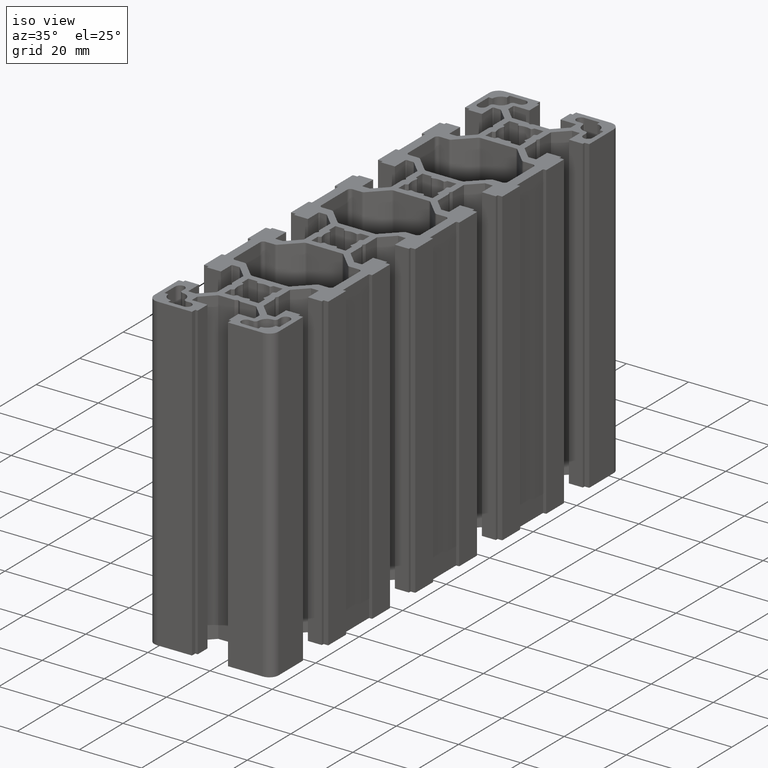
[diagram: clean part render]
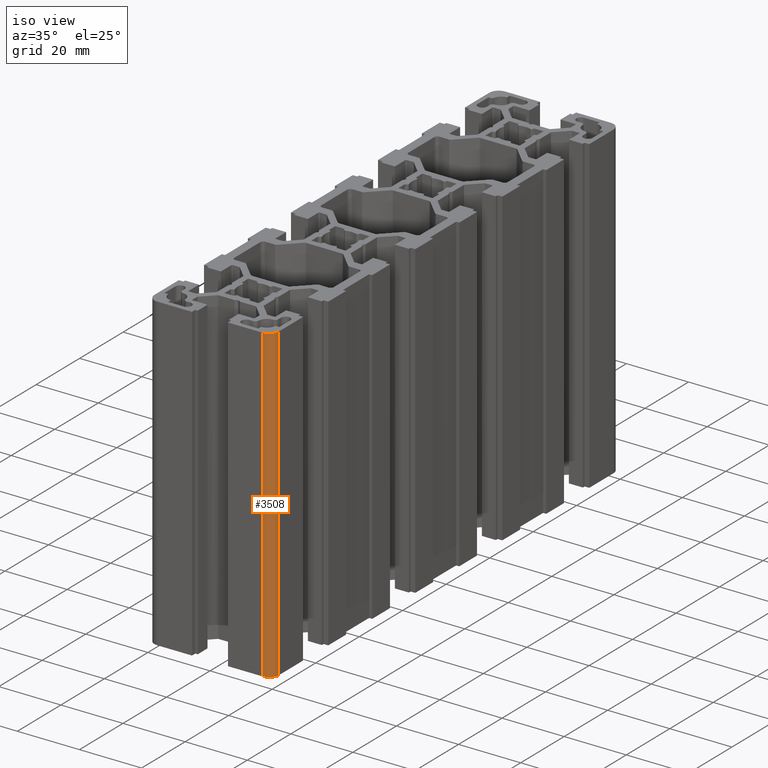
[diagram: same view with one face highlighted and labeled with its STEP entity id]
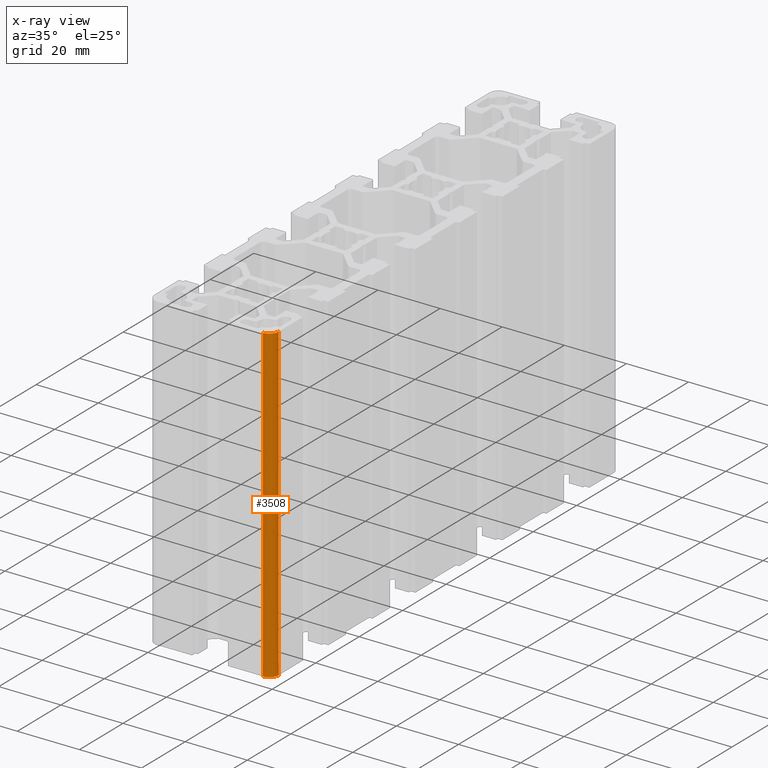
[diagram: x-ray of the same camera — body ghosted, the highlighted face saturated]
A machine part, iso view. The second image highlights one B-rep face of the part: STEP entity #3508.
The next image is the same camera in x-ray: the body ghosted, the highlighted face saturated — about 0% of this face is hidden behind the body in this view.
In plain terms, the highlighted cylindrical surface (edge-blend (fillet) strip) has radius 3 mm, axis along (0, 0, -1).
Its self-contained STEP definition (entity closure, byte-faithful):
#623 = VERTEX_POINT ( 'NONE', #7254 ) ;
#625 = EDGE_CURVE ( 'NONE', #623, #626, #7253, .T. ) ;
#626 = VERTEX_POINT ( 'NONE', #7248 ) ;
#2317 = VERTEX_POINT ( 'NONE', #10246 ) ;
#2319 = EDGE_CURVE ( 'NONE', #2320, #2317, #10245, .T. ) ;
#2320 = VERTEX_POINT ( 'NONE', #10240 ) ;
#3486 = ORIENTED_EDGE ( 'NONE', *, *, #2319, .T. ) ;
#3487 = ORIENTED_EDGE ( 'NONE', *, *, #3488, .F. ) ;
#3488 = EDGE_CURVE ( 'NONE', #626, #2317, #12073, .T. ) ;
#3489 = ORIENTED_EDGE ( 'NONE', *, *, #625, .F. ) ;
#3490 = ORIENTED_EDGE ( 'NONE', *, *, #3505, .T. ) ;
#3505 = EDGE_CURVE ( 'NONE', #623, #2320, #12113, .T. ) ;
#3508 = ADVANCED_FACE ( 'NONE', ( #12109 ), #12107, .T. ) ;
#3509 = EDGE_LOOP ( 'NONE', ( #3486, #3487, #3489, #3490 ) ) ;
#7248 = CARTESIAN_POINT ( 'NONE',  ( 20.00000000000000400, -77.00000133514396300, 100.0000000000000000 ) ) ;
#7249 = DIRECTION ( 'NONE',  ( 1.000000000000000000, 0.0000000000000000000, 0.0000000000000000000 ) ) ;
#7250 = DIRECTION ( 'NONE',  ( 0.0000000000000000000, 0.0000000000000000000, 1.000000000000000000 ) ) ;
#7251 = CARTESIAN_POINT ( 'NONE',  ( 17.00000000000000000, -77.00000133514396300, 100.0000000000000000 ) ) ;
#7252 = AXIS2_PLACEMENT_3D ( 'NONE', #7251, #7250, #7249 ) ;
#7253 = CIRCLE ( 'NONE', #7252, 3.000000000000002700 ) ;
#7254 = CARTESIAN_POINT ( 'NONE',  ( 17.00000000000000000, -80.00000133514396300, 100.0000000000000000 ) ) ;
#10240 = CARTESIAN_POINT ( 'NONE',  ( 17.00000000000000000, -80.00000133514396300, 0.0000000000000000000 ) ) ;
#10241 = DIRECTION ( 'NONE',  ( 1.000000000000000000, 0.0000000000000000000, 0.0000000000000000000 ) ) ;
#10242 = DIRECTION ( 'NONE',  ( 0.0000000000000000000, 0.0000000000000000000, 1.000000000000000000 ) ) ;
#10243 = CARTESIAN_POINT ( 'NONE',  ( 17.00000000000000000, -77.00000133514396300, 0.0000000000000000000 ) ) ;
#10244 = AXIS2_PLACEMENT_3D ( 'NONE', #10243, #10242, #10241 ) ;
#10245 = CIRCLE ( 'NONE', #10244, 3.000000000000002700 ) ;
#10246 = CARTESIAN_POINT ( 'NONE',  ( 20.00000000000000400, -77.00000133514396300, 0.0000000000000000000 ) ) ;
#12070 = DIRECTION ( 'NONE',  ( 0.0000000000000000000, 0.0000000000000000000, -1.000000000000000000 ) ) ;
#12071 = VECTOR ( 'NONE', #12070, 1000.000000000000000 ) ;
#12072 = CARTESIAN_POINT ( 'NONE',  ( 20.00000000000000400, -77.00000133514396300, 100.0000000000000000 ) ) ;
#12073 = LINE ( 'NONE', #12072, #12071 ) ;
#12103 = DIRECTION ( 'NONE',  ( -1.000000000000000000, 0.0000000000000000000, 0.0000000000000000000 ) ) ;
#12104 = DIRECTION ( 'NONE',  ( 0.0000000000000000000, 0.0000000000000000000, -1.000000000000000000 ) ) ;
#12105 = CARTESIAN_POINT ( 'NONE',  ( 17.00000000000000000, -77.00000133514396300, 100.0000000000000000 ) ) ;
#12106 = AXIS2_PLACEMENT_3D ( 'NONE', #12105, #12104, #12103 ) ;
#12107 = CYLINDRICAL_SURFACE ( 'NONE', #12106, 3.000000000000000900 ) ;
#12109 = FACE_OUTER_BOUND ( 'NONE', #3509, .T. ) ;
#12110 = DIRECTION ( 'NONE',  ( 0.0000000000000000000, 0.0000000000000000000, -1.000000000000000000 ) ) ;
#12111 = VECTOR ( 'NONE', #12110, 1000.000000000000000 ) ;
#12112 = CARTESIAN_POINT ( 'NONE',  ( 17.00000000000000000, -80.00000133514396300, 100.0000000000000000 ) ) ;
#12113 = LINE ( 'NONE', #12112, #12111 ) ;